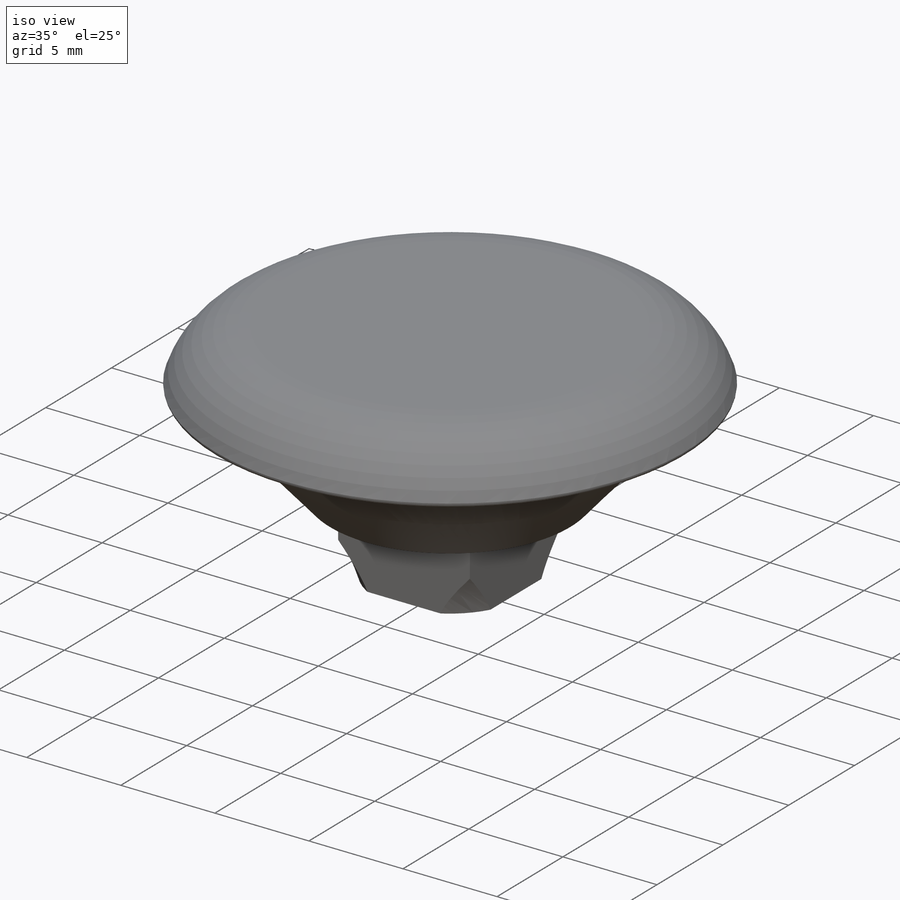
[diagram: iso view]
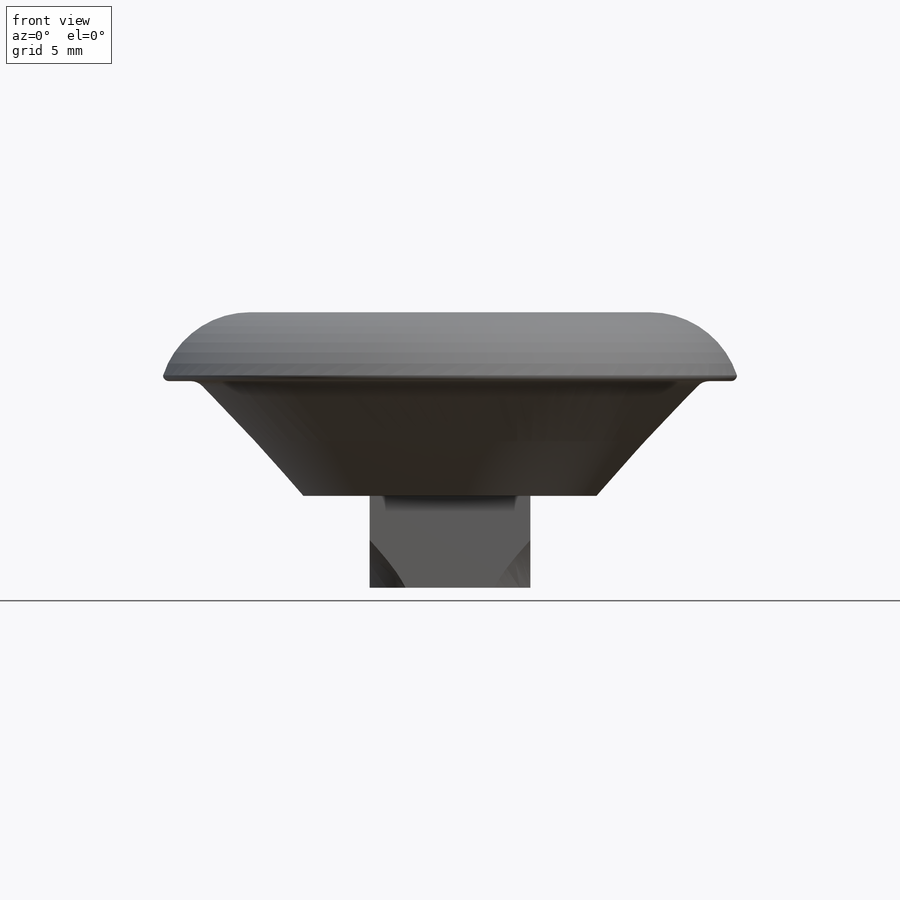
[diagram: front view]
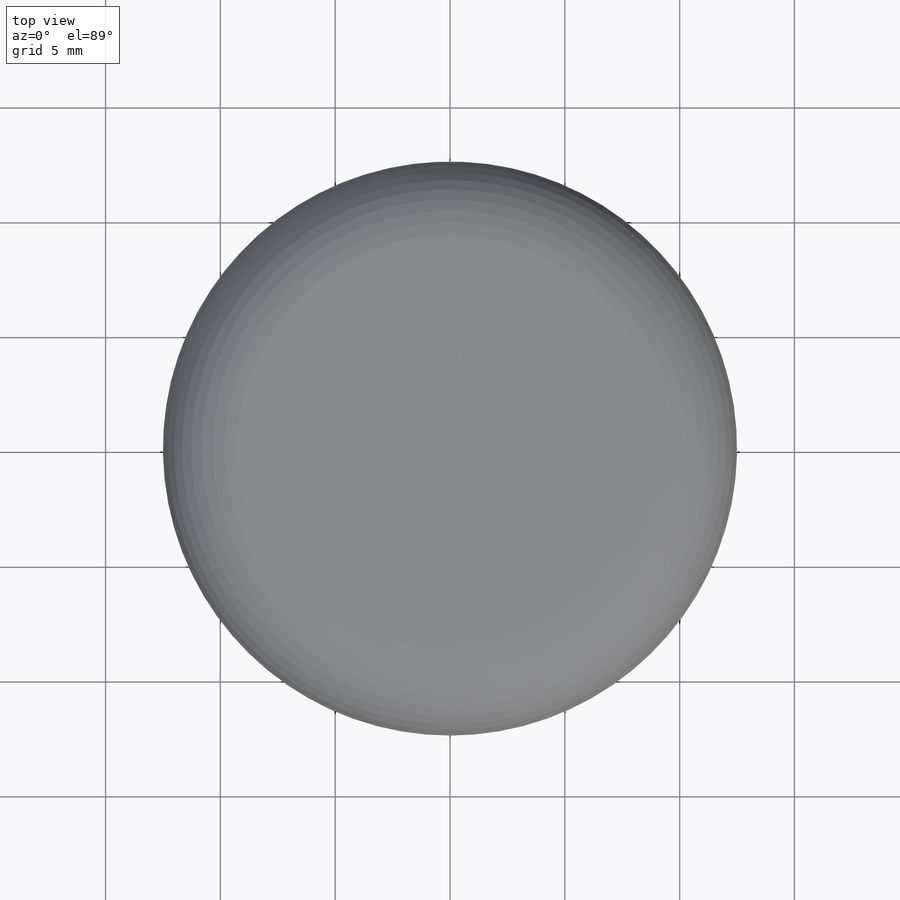
[diagram: top view]
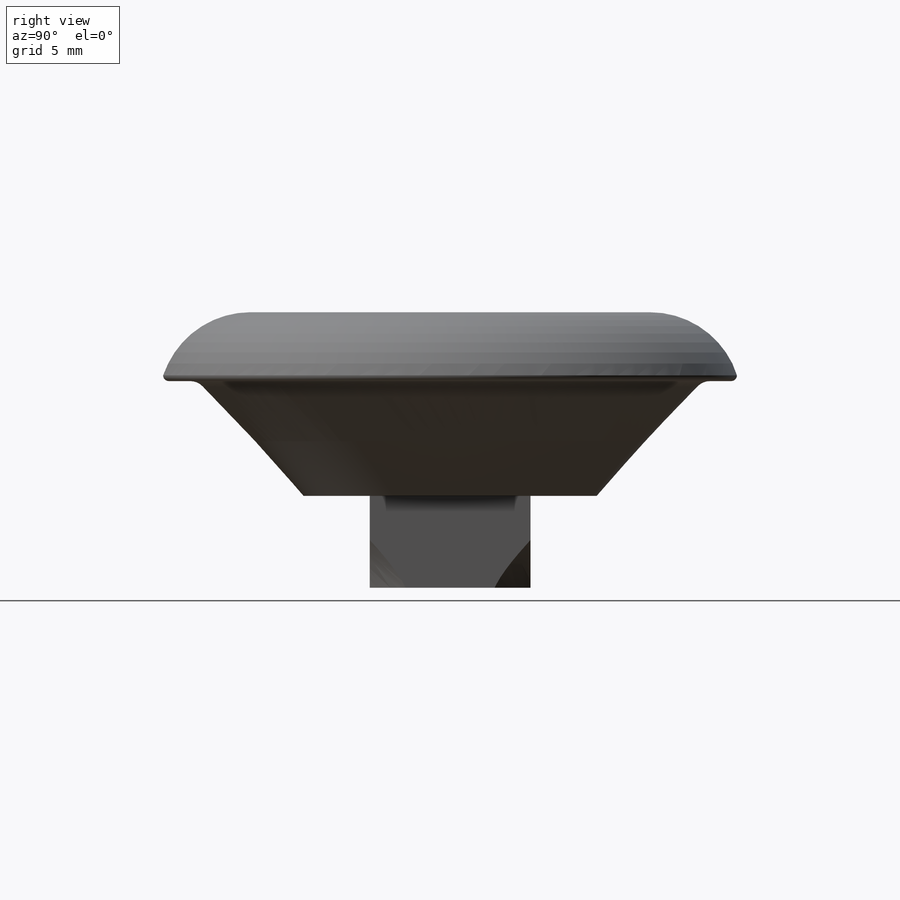
[diagram: right view]
SOLIDWORKS PART (.sldprt)
format: sldprt  version: not decoded by parser v0  size: 264,704 bytes
history: native  units: mm
features: sketch x4, fillet x3, material x1, plane x1, extrude x1, cut_extrude x1 (+12 scaffold rows collapsed)
feature tree (23):
  scaffold x12  (default folders/planes/origin — collapsed)
  material  "Material <not specified>"
  sketch  "Sketch1"  dims[D1=8.0mm]
  plane  "Plane1"  Offset=9mm
  sketch  "Sketch2"  dims[D1=22.0mm]
  sketch  "Sketch3"  dims[D1=25.0mm]
  extrude  "Boss-Extrude1"  Depth=3mm
  fillet  "Fillet1"  Radius=0.75mm
  fillet  "Fillet2"  Radius=0.25mm
  fillet  "Fillet4"  Radius=4mm
  sketch  "Sketch4"  dims[D1=7.0mm D2=7.0mm D3=20.0mm D4=20.0mm]
  cut_extrude  "Cut-Extrude1"  Depth=4mm
decode coverage: 9 of 9 modeling features carry decoded parameters
note: suppression state not decoded; provenance and decode notes live in map.json
